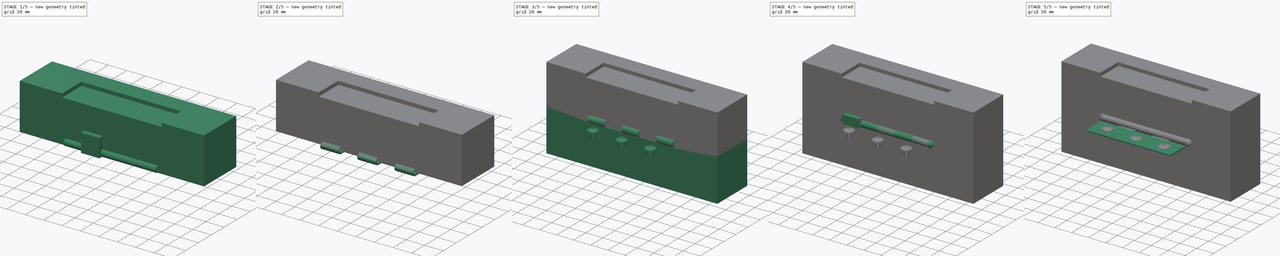
[diagram: build sequence overview — one tinted view per stage of 5, left to right]
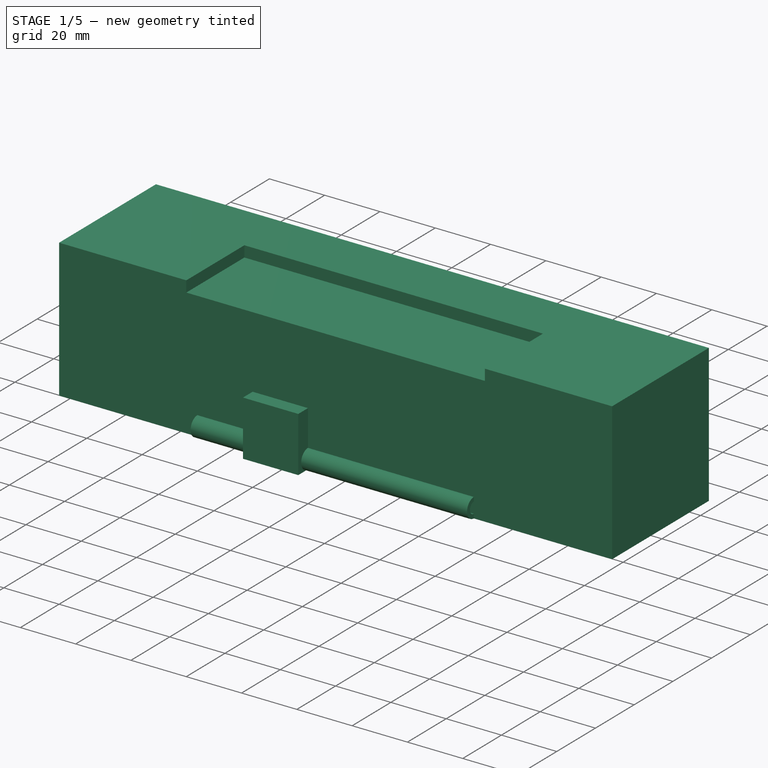
[diagram: stage 1 of 5 — iso view after this stage's code; geometry added in this stage tinted green]
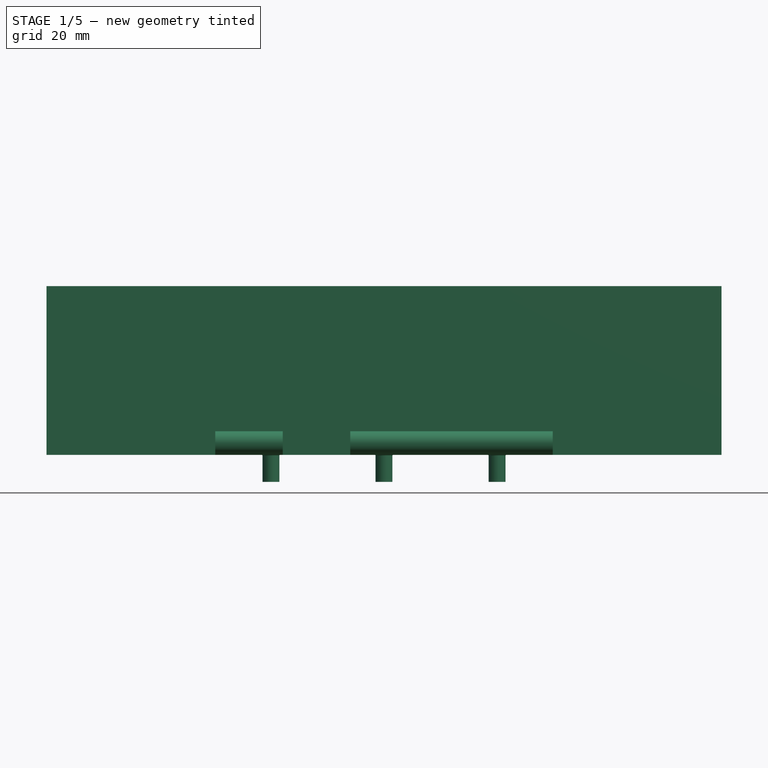
[diagram: stage 1 of 5 — front view after this stage's code; geometry added in this stage tinted green]
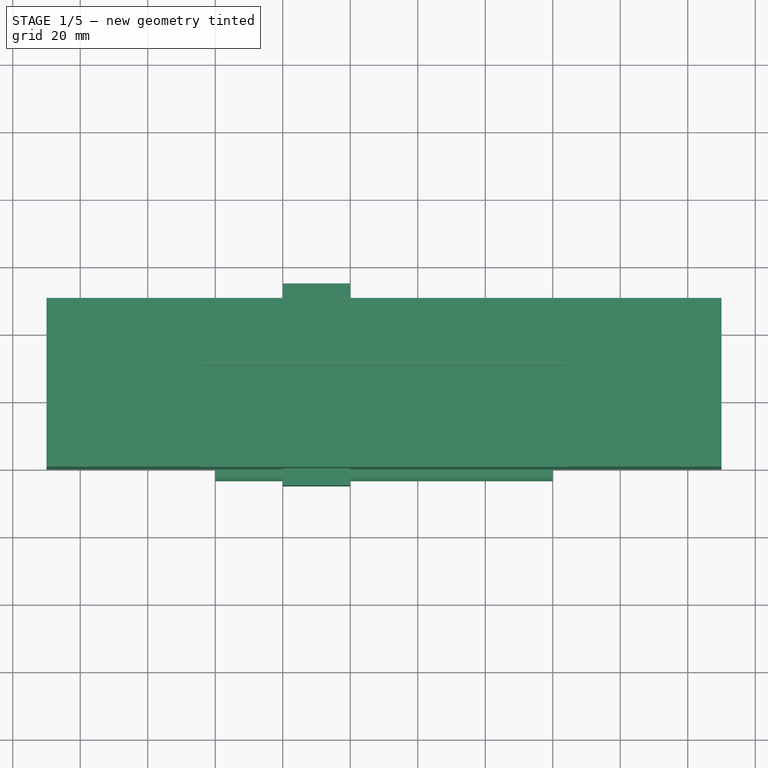
[diagram: stage 1 of 5 — top view after this stage's code; geometry added in this stage tinted green]
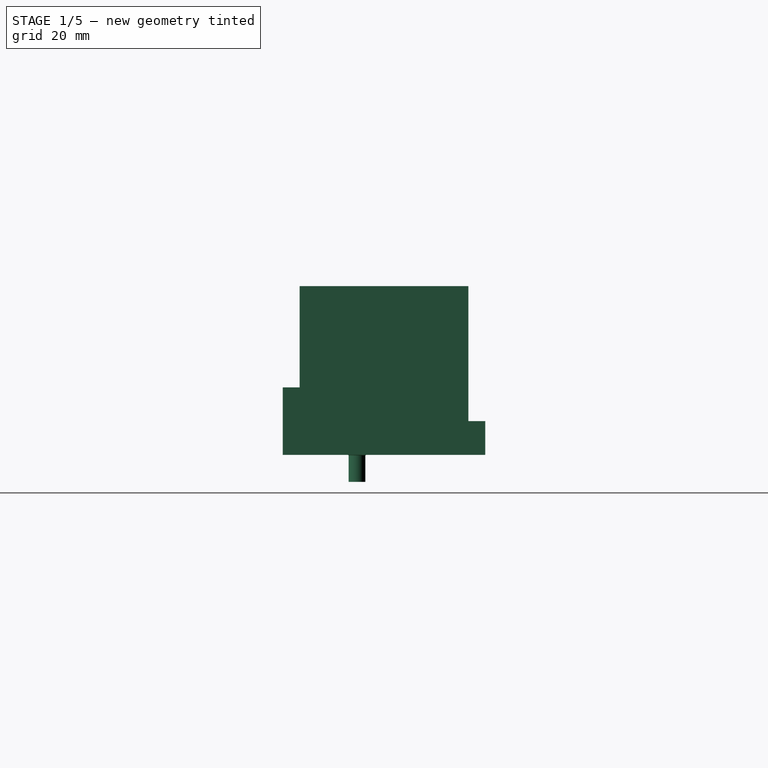
[diagram: stage 1 of 5 — right view after this stage's code; geometry added in this stage tinted green]
FCSTD DOCUMENT  (FreeCAD 0.19R24291 (Git))
Label: proj
License: All rights reserved
LicenseURL: http://en.wikipedia.org/wiki/All_rights_reserved
objects: Sketcher::SketchObject×10, Part::Box×7, Part::Cut×7, Part::FeaturePython×6, PartDesign::Pad×5, PartDesign::Pocket×5, PartDesign::Body×5, PartDesign::FeaturePython×3, PartDesign::Chamfer×3, Part::Compound×3, Part::Sphere×2, Part::MultiFuse×2, Part::Cylinder×1
note: 72 computed .brp shape members not serialized (recipe doc carries the construction recipe); baked Part::Feature solids carry a one-line shape summary decoded from their .brp

FEATURE [PartDesign::Body] Body001
  Group = -> [Sketch002,Pad001,Bend001,Sketch003,Pocket001,Chamfer001]
  Origin = -> Origin001
  Tip = -> Chamfer001
FEATURE [Sketcher::SketchObject] Sketch004
  FullyConstrained = true
  MapMode = 5
  Support = -> [XY_Plane002]
  sketch-geometry (4):
    g0: LineSegment StartX=0 StartY=0 StartZ=0 EndX=100 EndY=0 EndZ=0
    g1: LineSegment StartX=100 StartY=0 StartZ=0 EndX=100 EndY=30 EndZ=0
    g2: LineSegment StartX=100 StartY=30 StartZ=0 EndX=0 EndY=30 EndZ=0
    g3: LineSegment StartX=0 StartY=30 StartZ=0 EndX=0 EndY=0 EndZ=0
  constraints (11):
    c: Coincident(g0,g1)
    c: Coincident(g1,g2)
    c: Coincident(g2,g3)
    c: Coincident(g3,g0)
    c: Horizontal(g0)
    c: Horizontal(g2)
    c: Vertical(g1)
    c: Vertical(g3)
    c: Coincident(g0,g-1)
    c: DistanceY(g1) = 30
    c: DistanceX(g1) = 100
FEATURE [PartDesign::Pad] Pad002
  Direction = (1,1,1)
  Length = 1.5
  Length2 = 100
  Profile = -> Sketch004
  Type = 0
FEATURE [PartDesign::FeaturePython] Bend002  # WARN: FeaturePython — macro-defined, semantics opaque (R4)
  AutoMiter = true
  BaseFeature = -> Pad002
  BendType = 0
  LengthList = [1e-05]
  ReliefFactor = 0.7
  UseReliefFactor = false
  angle = 300
  baseObject = -> Pad002 [Face1]
  bendAList = [300]
  extend1 = 0
  extend2 = 0
  gap1 = 0
  gap2 = 0
  invert = false
  kfactor = 0.5
  length = 1e-05
  maxExtendDist = 5
  minGap = 0.1
  minReliefGap = 1
  miterangle1 = 0
  miterangle2 = 0
  offset = 0
  radius = 2
  reliefType = 0
  reliefd = 1
  reliefw = 0.8
  sketchflip = false
  sketchinvert = false
  unfold = false
FEATURE [Part::Box] Box001  label="Cube001"
  AttacherType = Attacher::AttachEngine3D
  Height = 10
  Length = 20
  Placement = pos=(20,45,0) rot=(0,0,1;0rad)
  Width = 10
FEATURE [Part::Box] Box005  label="Cube005"
  AttacherType = Attacher::AttachEngine3D
  Height = 20
  Length = 20
  Placement = pos=(20,-5,0) rot=(0,0,1;0rad)
  Width = 10
FEATURE [Sketcher::SketchObject] Sketch006
  FullyConstrained = true
  MapMode = 5
  Support = -> [XY_Plane003]
  sketch-geometry (4):
    g0: LineSegment StartX=-50 StartY=50 StartZ=0 EndX=150 EndY=50 EndZ=0
    g1: LineSegment StartX=150 StartY=50 StartZ=0 EndX=150 EndY=0 EndZ=0
    g2: LineSegment StartX=150 StartY=0 StartZ=0 EndX=-50 EndY=0 EndZ=0
    g3: LineSegment StartX=-50 StartY=0 StartZ=0 EndX=-50 EndY=50 EndZ=0
  constraints (12):
    c: Coincident(g0,g1)
    c: Coincident(g1,g2)
    c: Coincident(g2,g3)
    c: Coincident(g3,g0)
    c: Horizontal(g0)
    c: Horizontal(g2)
    c: Vertical(g1)
    c: Vertical(g3)
    c: Distance(g0) = 200
    c: Distance(g1) = 50
    c: DistanceX(g0) = 150
    c: DistanceY(g0) = 50
FEATURE [PartDesign::Pad] Pad003
  Direction = (1,1,1)
  Length = 50
  Length2 = 100
  Profile = -> Sketch006
  Type = 0
FEATURE [Sketcher::SketchObject] Sketch007
  FullyConstrained = false
  MapMode = 5
  Placement = pos=(0,0,50) rot=(0,0,1;0rad)
  Support = -> [Pad003]
  sketch-geometry (4):
    g0: LineSegment StartX=-4 StartY=0 StartZ=0 EndX=104 EndY=0 EndZ=0
    g1: LineSegment StartX=104 StartY=0 StartZ=0 EndX=104 EndY=30 EndZ=0
    g2: LineSegment StartX=104 StartY=30 StartZ=0 EndX=-4 EndY=30 EndZ=0
    g3: LineSegment StartX=-4 StartY=30 StartZ=0 EndX=-4 EndY=0 EndZ=0
  constraints (11):
    c: Coincident(g0,g1)
    c: Coincident(g1,g2)
    c: Coincident(g2,g3)
    c: Coincident(g3,g0)
    c: Horizontal(g0)
    c: Horizontal(g2)
    c: Vertical(g1)
    c: Vertical(g3)
    c: Distance(g1) = 30
    c: Distance(g2) = 108
    c: DistanceX(g1) = 104
FEATURE [PartDesign::Pocket] Pocket003
  BaseFeature = -> Pad003
  Length = 4
  Length2 = 100
  Profile = -> Sketch007
  Type = 0
FEATURE [PartDesign::Body] Body004
  Group = -> [Sketch009,Pad004,Sketch008,Pocket004]
  Origin = -> Origin004
  Placement = pos=(100,0,-46.5) rot=(0,0,1;3.14159rad)
  Tip = -> Pocket004
FEATURE [Part::FeaturePython] Screw  label="M5x8-Screw"  # Fasteners workbench fastener (typed FeaturePython)
  Placement = pos=(16.5,17,0) rot=(0,0,1;0rad)
  diameter = 4
  invert = false
  length = 1
  lengthCustom = 8
  matchOuter = false
  offset = 0
  thread = false
  type = 15
FEATURE [Part::FeaturePython] Screw001  label="M5x8-Screw013"  # Fasteners workbench fastener (typed FeaturePython)
  Placement = pos=(50,17,0) rot=(0,0,1;0rad)
  diameter = 4
  invert = false
  length = 1
  lengthCustom = 8
  matchOuter = false
  offset = 0
  thread = false
  type = 15
FEATURE [Part::FeaturePython] Screw002  label="M5x8-Screw014"  # Fasteners workbench fastener (typed FeaturePython)
  Placement = pos=(83.5,17,0) rot=(0,0,1;0rad)
  diameter = 4
  invert = false
  length = 1
  lengthCustom = 8
  matchOuter = false
  offset = 0
  thread = false
  type = 15
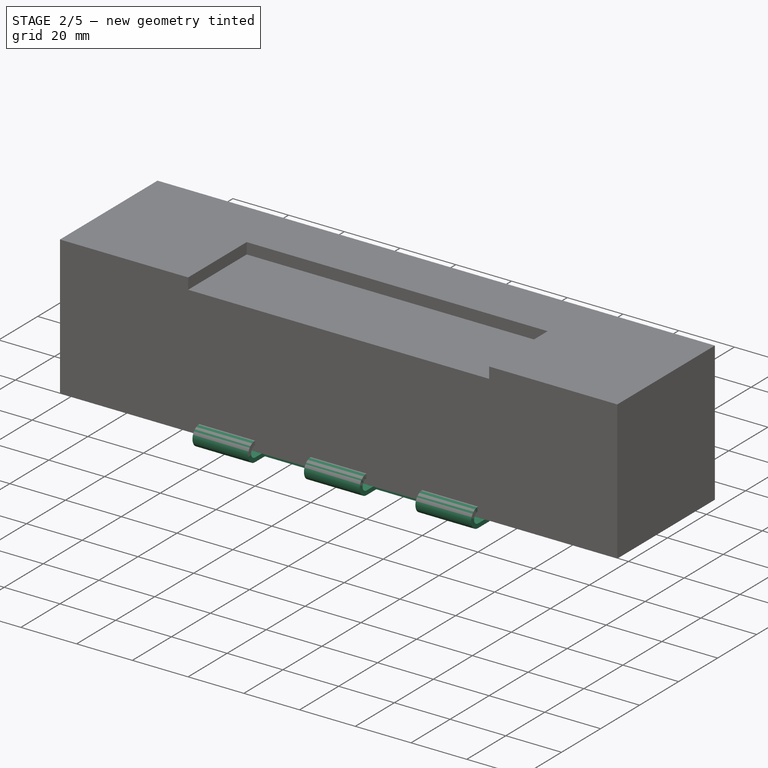
[diagram: stage 2 of 5 — iso view after this stage's code; geometry added in this stage tinted green]
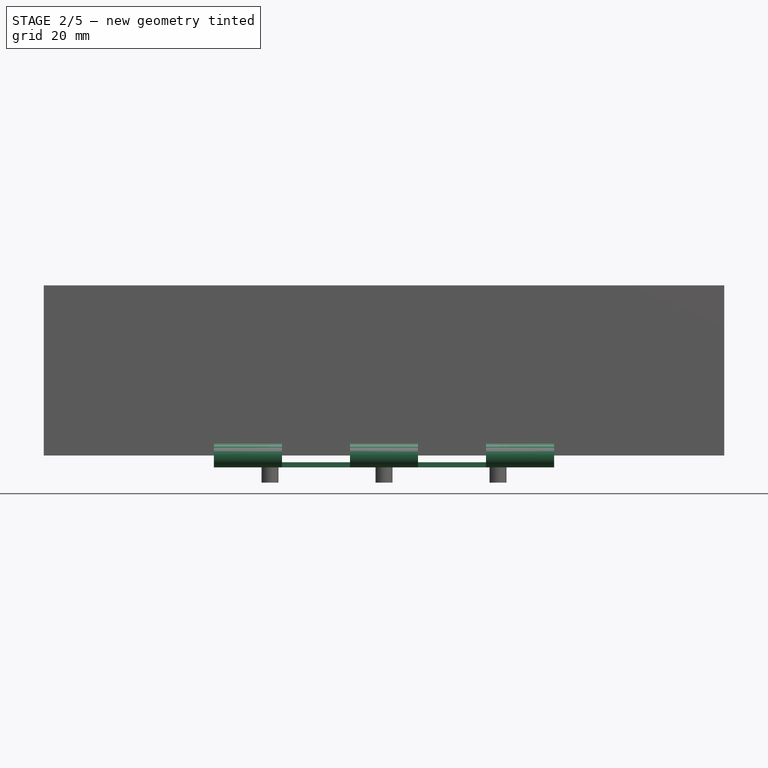
[diagram: stage 2 of 5 — front view after this stage's code; geometry added in this stage tinted green]
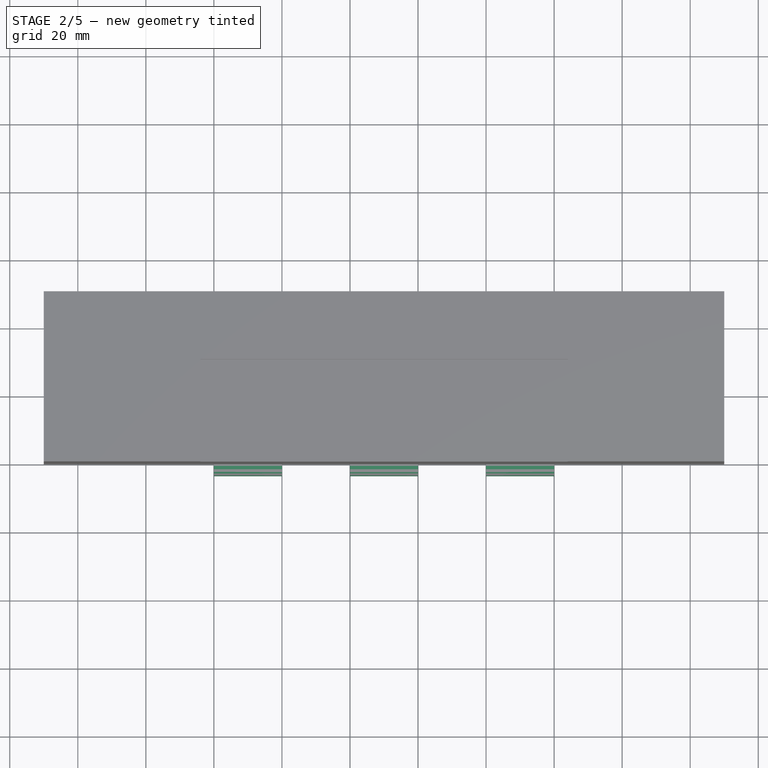
[diagram: stage 2 of 5 — top view after this stage's code; geometry added in this stage tinted green]
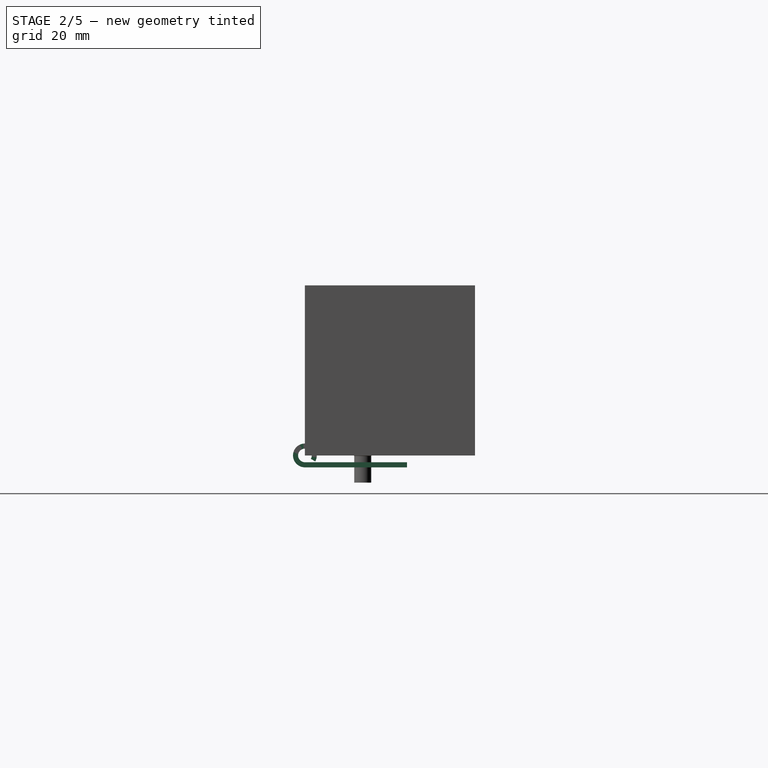
[diagram: stage 2 of 5 — right view after this stage's code; geometry added in this stage tinted green]
FEATURE [Sketcher::SketchObject] Sketch005
  FullyConstrained = true
  MapMode = 5
  Placement = pos=(0,0,1.5) rot=(0,0,1;0rad)
  Support = -> [Bend002]
  sketch-geometry (3):
    g0: Circle CenterX=16.65 CenterY=17 CenterZ=0 NormalX=0 NormalY=0 NormalZ=1 AngleXU=0 Radius=5
    g1: Circle CenterX=49.95 CenterY=17 CenterZ=0 NormalX=0 NormalY=0 NormalZ=1 AngleXU=0 Radius=5
    g2: Circle CenterX=83.25 CenterY=17 CenterZ=0 NormalX=0 NormalY=0 NormalZ=1 AngleXU=0 Radius=5
  constraints (9):
    c: DistanceY(g0) = 17
    c: DistanceY(g1) = 17
    c: DistanceY(g2) = 17
    c: Radius(g1) = 5
    c: Radius(g2) = 5
    c: Radius(g0) = 5
    c: DistanceX(g0) = 16.65
    c: DistanceX(g1) = 49.95
    c: DistanceX(g2) = 83.25
FEATURE [PartDesign::Pocket] Pocket002
  BaseFeature = -> Bend002
  Length = 5
  Length2 = 100
  Profile = -> Sketch005
  Type = 0
FEATURE [PartDesign::Chamfer] Chamfer002
  Angle = 45
  Base = -> Pocket002 [Edge32,Edge33,Edge31]
  BaseFeature = -> Pocket002
  ChamferType = 0
  FlipDirection = false
  Size = 1
  Size2 = 1
  SupportTransform = false
FEATURE [Part::Box] Box003  label="Cube003"
  AttacherType = Attacher::AttachEngine3D
  Height = 10
  Length = 20
  Placement = pos=(60,45,0) rot=(0,0,1;0rad)
  Width = 10
FEATURE [Part::Cut] Cut003
  Base = -> Body002
  Tool = -> Box001
FEATURE [Part::Cut] Cut004
  Base = -> Cut003
  Placement = pos=(0,-50,-3.5) rot=(0,0,1;0rad)
  Tool = -> Box003
FEATURE [Part::Compound] Compound
  Links = -> [Cut004]
FEATURE [Part::Box] Box006  label="Cube006"
  AttacherType = Attacher::AttachEngine3D
  Height = 20
  Length = 20
  Placement = pos=(60,-5,0) rot=(0,0,1;0rad)
  Width = 10
FEATURE [Part::Cut] Cut005
  Base = -> Compound
  Tool = -> Box005
FEATURE [Part::Cut] Cut006
  Base = -> Cut005
  Placement = pos=(0,0,-3.5) rot=(1,0,0;0rad)
  Tool = -> Box006
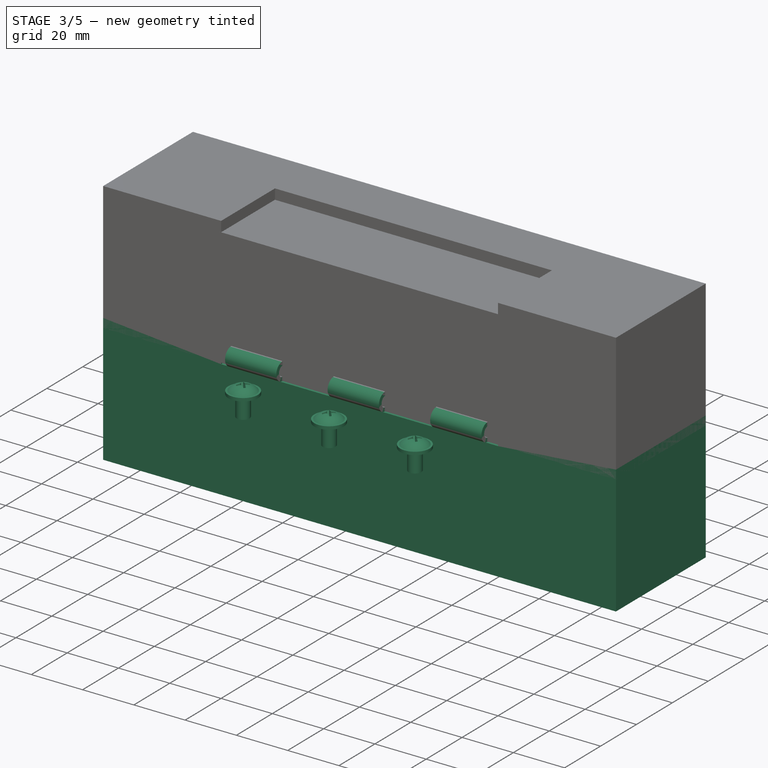
[diagram: stage 3 of 5 — iso view after this stage's code; geometry added in this stage tinted green]
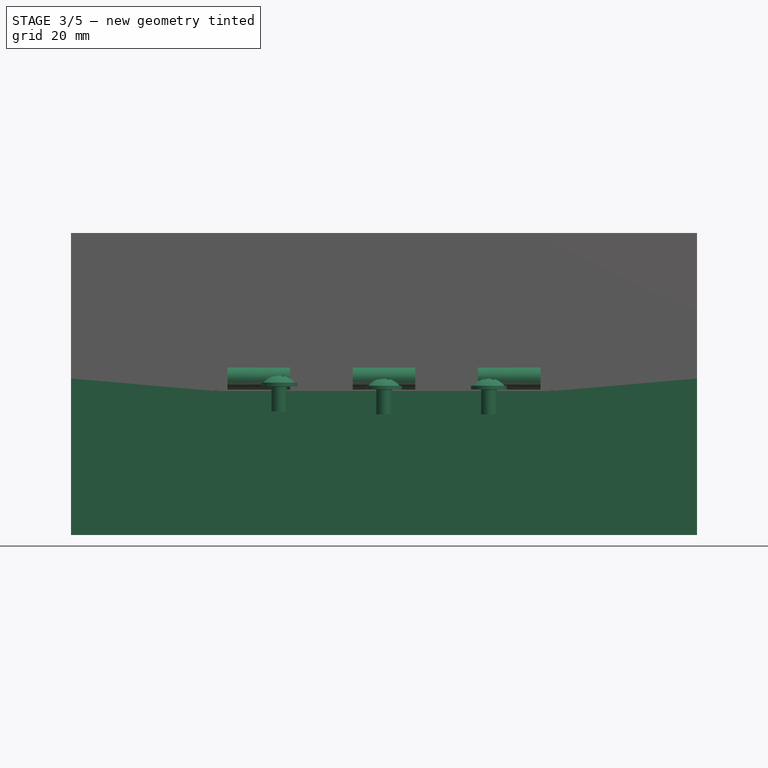
[diagram: stage 3 of 5 — front view after this stage's code; geometry added in this stage tinted green]
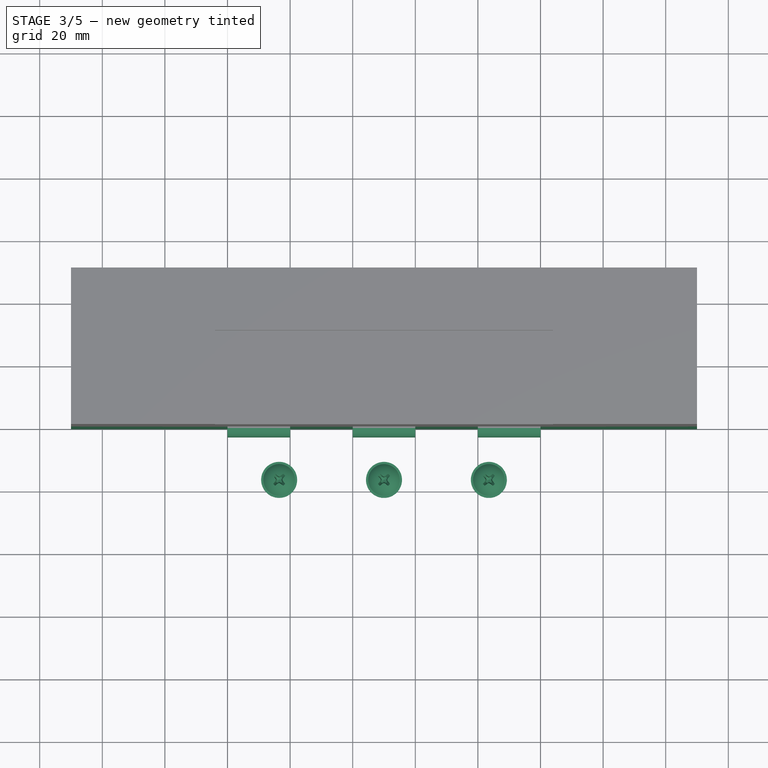
[diagram: stage 3 of 5 — top view after this stage's code; geometry added in this stage tinted green]
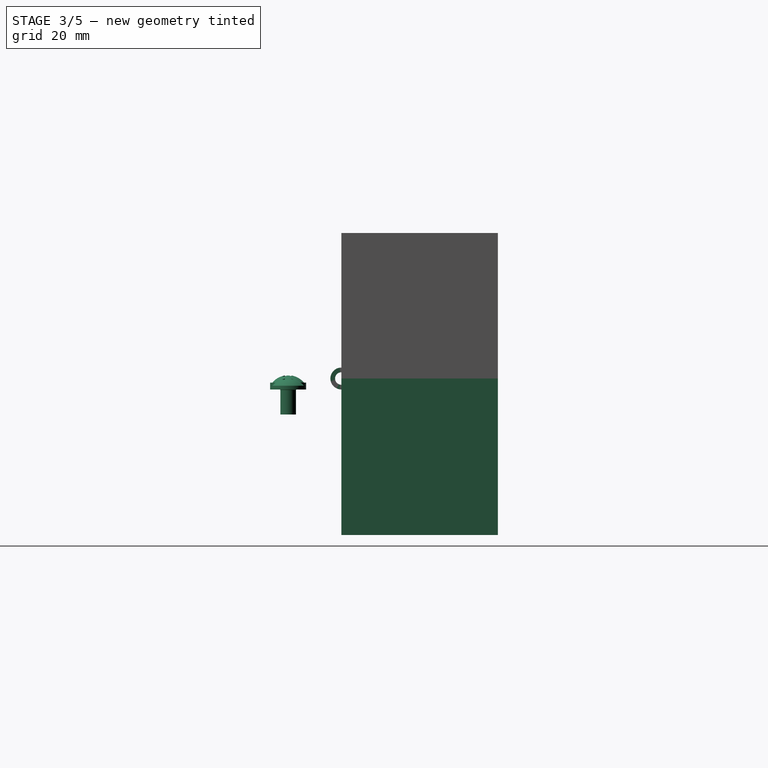
[diagram: stage 3 of 5 — right view after this stage's code; geometry added in this stage tinted green]
FEATURE [Part::Compound] Compound001
  Links = -> [Cut006]
  Placement = pos=(0,0,3.5) rot=(1,0,0;0rad)
FEATURE [PartDesign::Body] Body003
  Group = -> [Sketch006,Pad003,Sketch007,Pocket003]
  Origin = -> Origin003
  Placement = pos=(0,0,-46.5) rot=(1,0,0;0rad)
  Tip = -> Pocket003
FEATURE [Sketcher::SketchObject] Sketch009
  FullyConstrained = true
  MapMode = 5
  Support = -> [XY_Plane004]
  sketch-geometry (4):
    g0: LineSegment StartX=-50 StartY=50 StartZ=0 EndX=150 EndY=50 EndZ=0
    g1: LineSegment StartX=150 StartY=50 StartZ=0 EndX=150 EndY=0 EndZ=0
    g2: LineSegment StartX=150 StartY=0 StartZ=0 EndX=-50 EndY=0 EndZ=0
    g3: LineSegment StartX=-50 StartY=0 StartZ=0 EndX=-50 EndY=50 EndZ=0
  constraints (12):
    c: Coincident(g0,g1)
    c: Coincident(g1,g2)
    c: Coincident(g2,g3)
    c: Coincident(g3,g0)
    c: Horizontal(g0)
    c: Horizontal(g2)
    c: Vertical(g1)
    c: Vertical(g3)
    c: Distance(g0) = 200
    c: Distance(g1) = 50
    c: DistanceX(g0) = 150
    c: DistanceY(g0) = 50
FEATURE [PartDesign::Pad] Pad004
  Direction = (1,1,1)
  Length = 50
  Length2 = 100
  Profile = -> Sketch009
  Type = 0
FEATURE [Sketcher::SketchObject] Sketch008
  FullyConstrained = false
  MapMode = 5
  Placement = pos=(0,0,50) rot=(0,0,1;0rad)
  Support = -> [Pad004]
  sketch-geometry (4):
    g0: LineSegment StartX=-4 StartY=0 StartZ=0 EndX=104 EndY=0 EndZ=0
    g1: LineSegment StartX=104 StartY=0 StartZ=0 EndX=104 EndY=30 EndZ=0
    g2: LineSegment StartX=104 StartY=30 StartZ=0 EndX=-4 EndY=30 EndZ=0
    g3: LineSegment StartX=-4 StartY=30 StartZ=0 EndX=-4 EndY=0 EndZ=0
  constraints (11):
    c: Coincident(g0,g1)
    c: Coincident(g1,g2)
    c: Coincident(g2,g3)
    c: Coincident(g3,g0)
    c: Horizontal(g0)
    c: Horizontal(g2)
    c: Vertical(g1)
    c: Vertical(g3)
    c: Distance(g1) = 30
    c: Distance(g2) = 108
    c: DistanceX(g1) = 104
FEATURE [PartDesign::Pocket] Pocket004
  BaseFeature = -> Pad004
  Length = 4
  Length2 = 100
  Profile = -> Sketch008
  Type = 0
FEATURE [Part::FeaturePython] Screw003  label="M5x8-Screw015"  # Fasteners workbench fastener (typed FeaturePython)
  Placement = pos=(16.5,-17,1) rot=(0,0,1;0rad)
  diameter = 4
  invert = false
  length = 1
  lengthCustom = 8
  matchOuter = false
  offset = 0
  thread = false
  type = 15
FEATURE [Part::FeaturePython] Screw004  label="M5x8-Screw016"  # Fasteners workbench fastener (typed FeaturePython)
  Placement = pos=(50,-17,0) rot=(0,0,1;0rad)
  diameter = 4
  invert = false
  length = 1
  lengthCustom = 8
  matchOuter = false
  offset = 0
  thread = false
  type = 15
FEATURE [Part::FeaturePython] Screw005  label="M5x8-Screw017"  # Fasteners workbench fastener (typed FeaturePython)
  Placement = pos=(83.5,-17,0) rot=(0,0,1;0rad)
  diameter = 4
  invert = false
  length = 1
  lengthCustom = 8
  matchOuter = false
  offset = 0
  thread = false
  type = 15
FEATURE [Part::MultiFuse] Fusion001
  Placement = pos=(0,0,-3.5) rot=(1,0,0;0rad)
  Shapes = -> [Compound001,Body003,Screw,Screw001,Screw002]
FEATURE [Part::Compound] Compound002
  Links = -> [Fusion001]
  Placement = pos=(0,0,3.5) rot=(1,0,0;0rad)
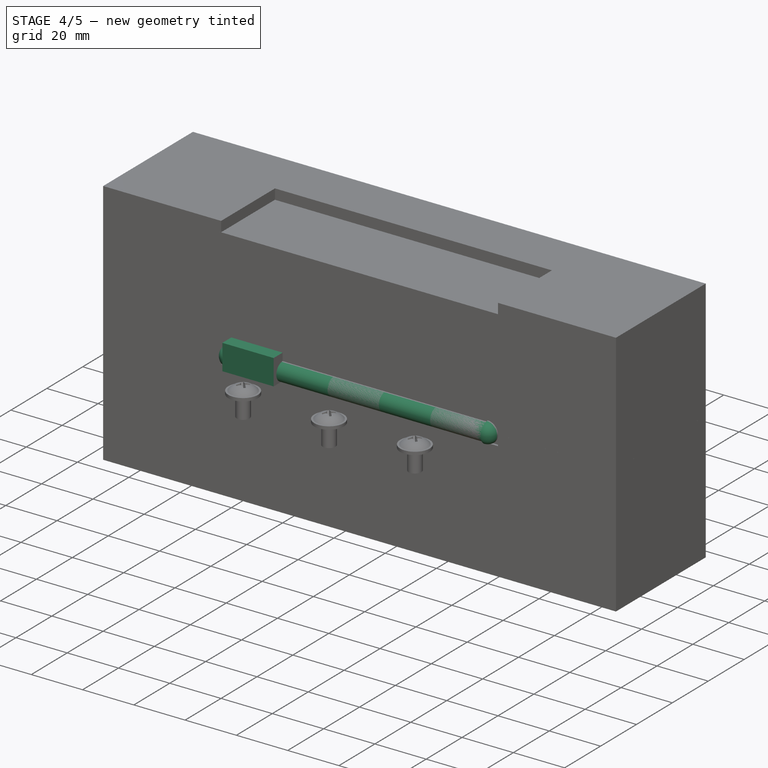
[diagram: stage 4 of 5 — iso view after this stage's code; geometry added in this stage tinted green]
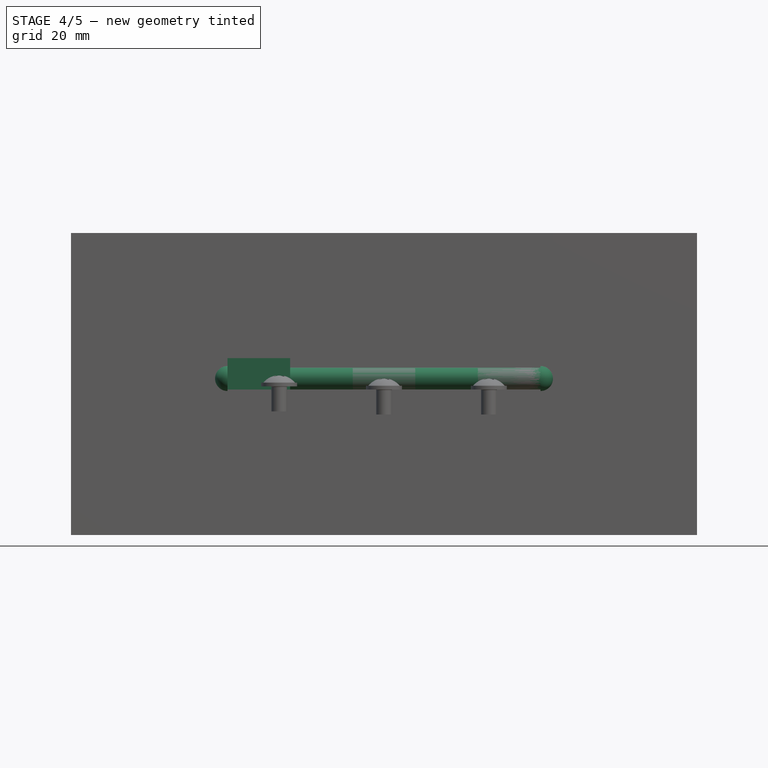
[diagram: stage 4 of 5 — front view after this stage's code; geometry added in this stage tinted green]
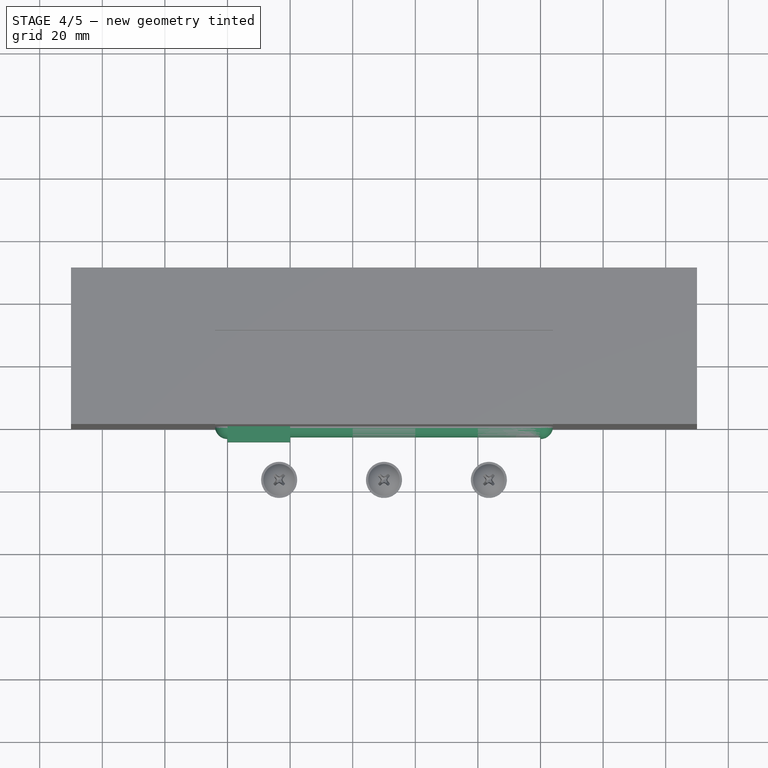
[diagram: stage 4 of 5 — top view after this stage's code; geometry added in this stage tinted green]
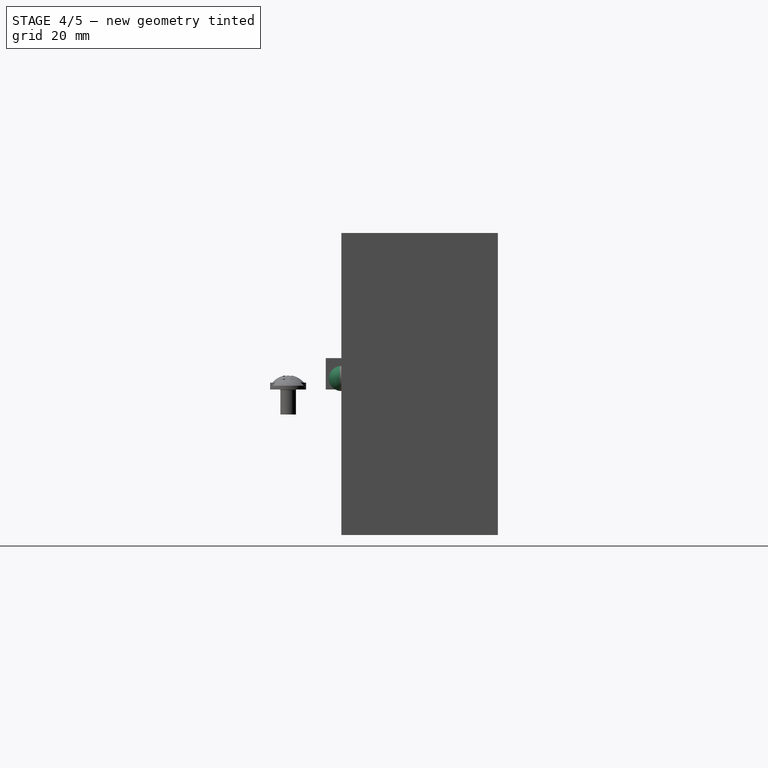
[diagram: stage 4 of 5 — right view after this stage's code; geometry added in this stage tinted green]
FEATURE [PartDesign::Body] Body
  Group = -> [Sketch,Pad,Bend,Sketch001,Pocket,Chamfer]
  Origin = -> Origin
  Tip = -> Chamfer
FEATURE [Sketcher::SketchObject] Sketch002
  FullyConstrained = true
  MapMode = 5
  Support = -> [XY_Plane001]
  sketch-geometry (4):
    g0: LineSegment StartX=0 StartY=0 StartZ=0 EndX=100 EndY=0 EndZ=0
    g1: LineSegment StartX=100 StartY=0 StartZ=0 EndX=100 EndY=30 EndZ=0
    g2: LineSegment StartX=100 StartY=30 StartZ=0 EndX=0 EndY=30 EndZ=0
    g3: LineSegment StartX=0 StartY=30 StartZ=0 EndX=0 EndY=0 EndZ=0
  constraints (11):
    c: Coincident(g0,g1)
    c: Coincident(g1,g2)
    c: Coincident(g2,g3)
    c: Coincident(g3,g0)
    c: Horizontal(g0)
    c: Horizontal(g2)
    c: Vertical(g1)
    c: Vertical(g3)
    c: Coincident(g0,g-1)
    c: DistanceY(g1) = 30
    c: DistanceX(g1) = 100
FEATURE [PartDesign::Pad] Pad001
  Direction = (1,1,1)
  Length = 1.5
  Length2 = 100
  Profile = -> Sketch002
  Type = 0
FEATURE [PartDesign::FeaturePython] Bend001  # WARN: FeaturePython — macro-defined, semantics opaque (R4)
  AutoMiter = true
  BaseFeature = -> Pad001
  BendType = 0
  LengthList = [1e-05]
  ReliefFactor = 0.7
  UseReliefFactor = false
  angle = 300
  baseObject = -> Pad001 [Face1]
  bendAList = [300]
  extend1 = 0
  extend2 = 0
  gap1 = 0
  gap2 = 0
  invert = false
  kfactor = 0.5
  length = 1e-05
  maxExtendDist = 5
  minGap = 0.1
  minReliefGap = 1
  miterangle1 = 0
  miterangle2 = 0
  offset = 0
  radius = 2
  reliefType = 0
  reliefd = 1
  reliefw = 0.8
  sketchflip = false
  sketchinvert = false
  unfold = false
FEATURE [Sketcher::SketchObject] Sketch003
  FullyConstrained = true
  MapMode = 5
  Placement = pos=(0,0,1.5) rot=(0,0,1;0rad)
  Support = -> [Bend001]
  sketch-geometry (3):
    g0: Circle CenterX=16.65 CenterY=17 CenterZ=0 NormalX=0 NormalY=0 NormalZ=1 AngleXU=0 Radius=5
    g1: Circle CenterX=49.95 CenterY=17 CenterZ=0 NormalX=0 NormalY=0 NormalZ=1 AngleXU=0 Radius=5
    g2: Circle CenterX=83.25 CenterY=17 CenterZ=0 NormalX=0 NormalY=0 NormalZ=1 AngleXU=0 Radius=5
  constraints (9):
    c: DistanceY(g0) = 17
    c: DistanceY(g1) = 17
    c: DistanceY(g2) = 17
    c: Radius(g1) = 5
    c: Radius(g2) = 5
    c: Radius(g0) = 5
    c: DistanceX(g0) = 16.65
    c: DistanceX(g1) = 49.95
    c: DistanceX(g2) = 83.25
FEATURE [PartDesign::Pocket] Pocket001
  BaseFeature = -> Bend001
  Length = 5
  Length2 = 100
  Profile = -> Sketch003
  Type = 0
FEATURE [PartDesign::Chamfer] Chamfer001
  Angle = 45
  Base = -> Pocket001 [Edge32,Edge33,Edge31]
  BaseFeature = -> Pocket001
  ChamferType = 0
  FlipDirection = false
  Size = 1
  Size2 = 1
  SupportTransform = false
FEATURE [PartDesign::Body] Body002
  Group = -> [Sketch004,Pad002,Bend002,Sketch005,Pocket002,Chamfer002]
  Origin = -> Origin002
  Placement = pos=(0,50,3.5) rot=(1,0,0;0rad)
  Tip = -> Chamfer002
FEATURE [Part::Box] Box  label="Cube"
  AttacherType = Attacher::AttachEngine3D
  Height = 10
  Length = 20
  Placement = pos=(0,-5,0) rot=(0,0,1;0rad)
  Width = 10
FEATURE [Part::Cylinder] Cylinder
  Angle = 360
  AttacherType = Attacher::AttachEngine3D
  Height = 102
  Placement = pos=(-1,50,3.4) rot=(0.707107,0,0.707107;3.14159rad)
  Radius = 2
FEATURE [Part::Sphere] Sphere
  Angle1 = -90
  Angle2 = 90
  Angle3 = 180
  AttacherType = Attacher::AttachEngine3D
  Placement = pos=(0,50,3.5) rot=(0,0,1;1.5708rad)
  Radius = 4
FEATURE [Part::Sphere] Sphere001
  Angle1 = -90
  Angle2 = 90
  Angle3 = 180
  AttacherType = Attacher::AttachEngine3D
  Placement = pos=(100,50,3.5) rot=(0,0,-1;1.5708rad)
  Radius = 4
FEATURE [Part::MultiFuse] Fusion
  Placement = pos=(0,-50,0) rot=(0,0,1;0rad)
  Shapes = -> [Sphere001,Cylinder,Sphere]
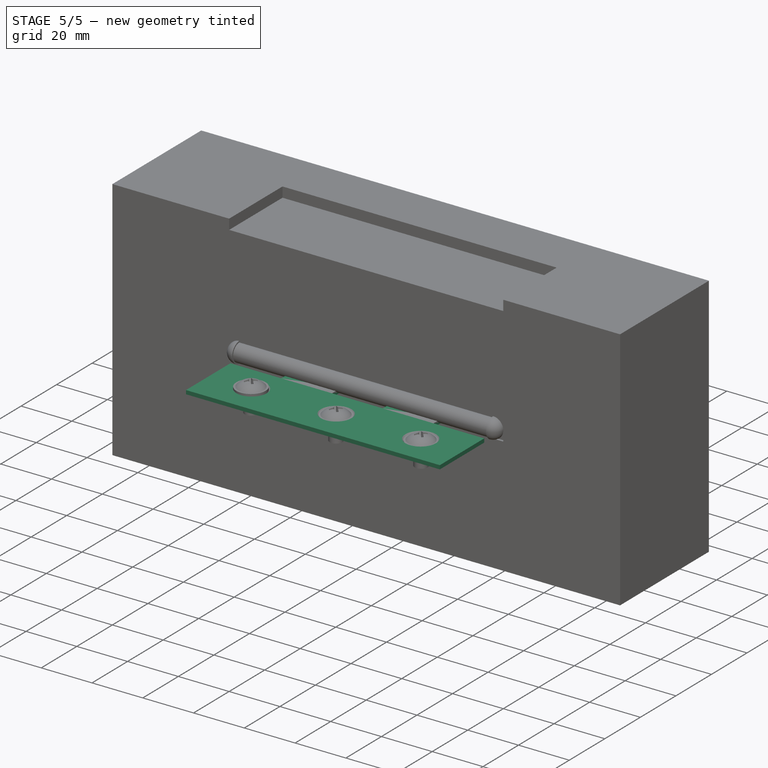
[diagram: stage 5 of 5 — iso view after this stage's code; geometry added in this stage tinted green]
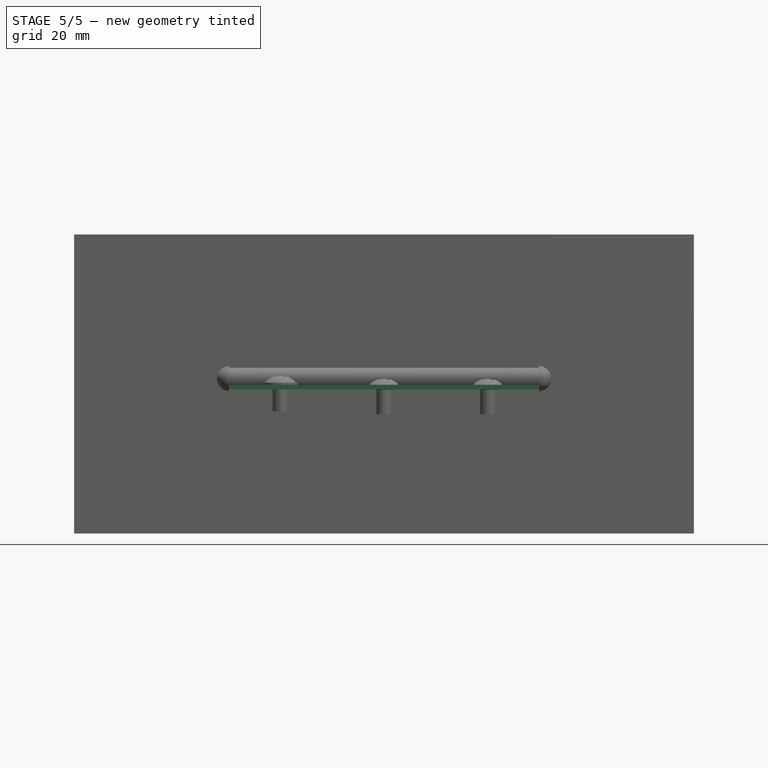
[diagram: stage 5 of 5 — front view after this stage's code; geometry added in this stage tinted green]
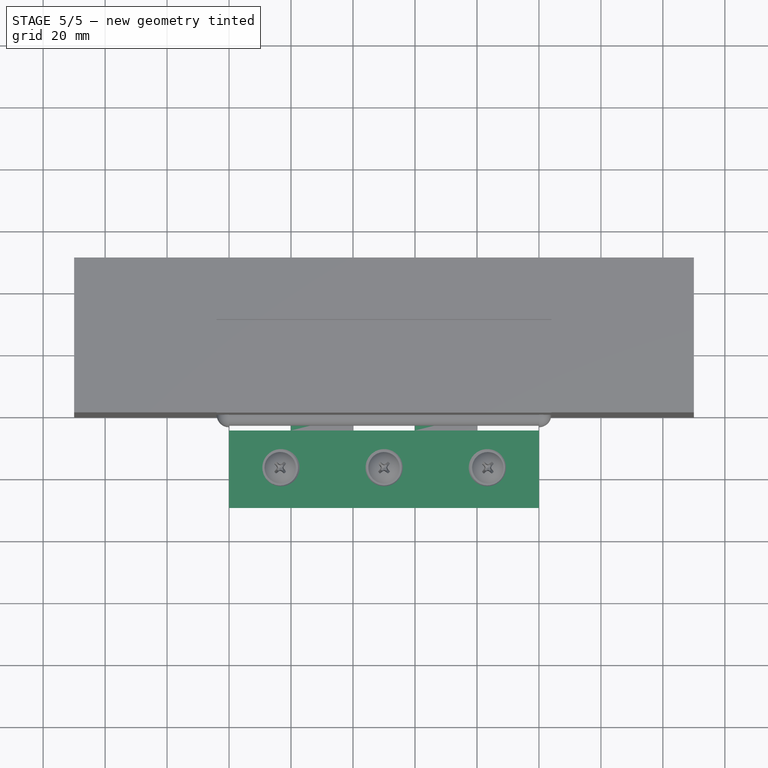
[diagram: stage 5 of 5 — top view after this stage's code; geometry added in this stage tinted green]
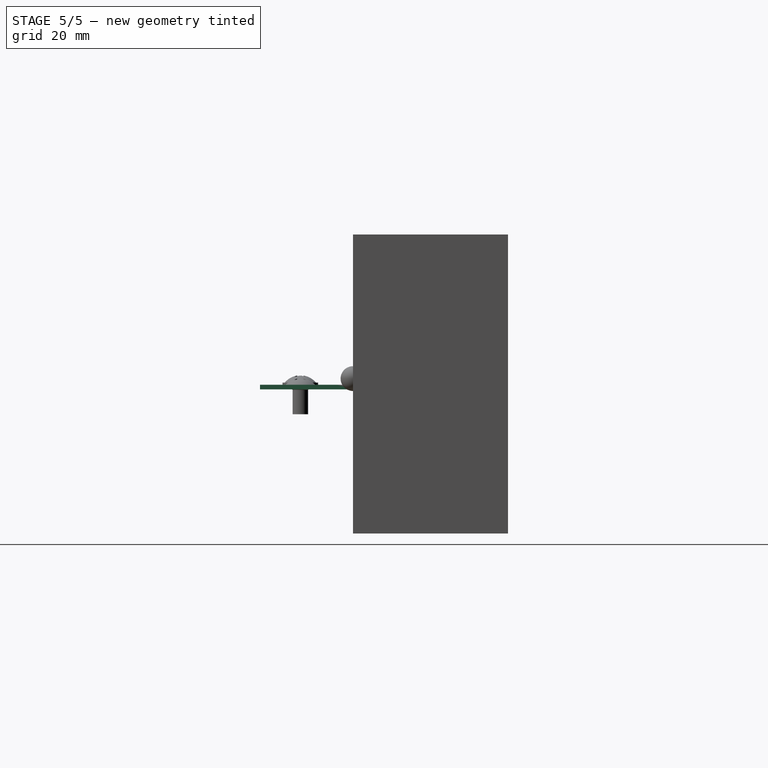
[diagram: stage 5 of 5 — right view after this stage's code; geometry added in this stage tinted green]
FEATURE [Sketcher::SketchObject] Sketch
  FullyConstrained = true
  MapMode = 5
  Support = -> [XY_Plane]
  sketch-geometry (4):
    g0: LineSegment StartX=0 StartY=0 StartZ=0 EndX=100 EndY=0 EndZ=0
    g1: LineSegment StartX=100 StartY=0 StartZ=0 EndX=100 EndY=30 EndZ=0
    g2: LineSegment StartX=100 StartY=30 StartZ=0 EndX=0 EndY=30 EndZ=0
    g3: LineSegment StartX=0 StartY=30 StartZ=0 EndX=0 EndY=0 EndZ=0
  constraints (11):
    c: Coincident(g0,g1)
    c: Coincident(g1,g2)
    c: Coincident(g2,g3)
    c: Coincident(g3,g0)
    c: Horizontal(g0)
    c: Horizontal(g2)
    c: Vertical(g1)
    c: Vertical(g3)
    c: Coincident(g0,g-1)
    c: DistanceY(g1) = 30
    c: DistanceX(g1) = 100
FEATURE [PartDesign::Pad] Pad
  Direction = (1,1,1)
  Length = 1.5
  Length2 = 100
  Profile = -> Sketch
  Type = 0
FEATURE [PartDesign::FeaturePython] Bend  # WARN: FeaturePython — macro-defined, semantics opaque (R4)
  AutoMiter = true
  BaseFeature = -> Pad
  BendType = 0
  LengthList = [1e-05]
  ReliefFactor = 0.7
  UseReliefFactor = false
  angle = 300
  baseObject = -> Pad [Face1]
  bendAList = [300]
  extend1 = 0
  extend2 = 0
  gap1 = 0
  gap2 = 0
  invert = false
  kfactor = 0.5
  length = 1e-05
  maxExtendDist = 5
  minGap = 0.1
  minReliefGap = 1
  miterangle1 = 0
  miterangle2 = 0
  offset = 0
  radius = 2
  reliefType = 0
  reliefd = 1
  reliefw = 0.8
  sketchflip = false
  sketchinvert = false
  unfold = false
FEATURE [Sketcher::SketchObject] Sketch001
  FullyConstrained = true
  MapMode = 5
  Placement = pos=(0,0,1.5) rot=(0,0,1;0rad)
  Support = -> [Bend]
  sketch-geometry (3):
    g0: Circle CenterX=16.65 CenterY=17 CenterZ=0 NormalX=0 NormalY=0 NormalZ=1 AngleXU=0 Radius=5
    g1: Circle CenterX=49.95 CenterY=17 CenterZ=0 NormalX=0 NormalY=0 NormalZ=1 AngleXU=0 Radius=5
    g2: Circle CenterX=83.25 CenterY=17 CenterZ=0 NormalX=0 NormalY=0 NormalZ=1 AngleXU=0 Radius=5
  constraints (9):
    c: DistanceY(g0) = 17
    c: DistanceY(g1) = 17
    c: DistanceY(g2) = 17
    c: Radius(g1) = 5
    c: Radius(g2) = 5
    c: Radius(g0) = 5
    c: DistanceX(g0) = 16.65
    c: DistanceX(g1) = 49.95
    c: DistanceX(g2) = 83.25
FEATURE [PartDesign::Pocket] Pocket
  BaseFeature = -> Bend
  Length = 5
  Length2 = 100
  Profile = -> Sketch001
  Type = 0
FEATURE [PartDesign::Chamfer] Chamfer
  Angle = 45
  Base = -> Pocket [Edge32,Edge33,Edge31]
  BaseFeature = -> Pocket
  ChamferType = 0
  FlipDirection = false
  Size = 1
  Size2 = 1
  SupportTransform = false
FEATURE [Part::Box] Box002  label="Cube002"
  AttacherType = Attacher::AttachEngine3D
  Height = 10
  Length = 20
  Placement = pos=(40,-5,0) rot=(0,0,1;0rad)
  Width = 10
FEATURE [Part::Box] Box004  label="Cube004"
  AttacherType = Attacher::AttachEngine3D
  Height = 10
  Length = 20
  Placement = pos=(80,-5,0) rot=(0,0,1;0rad)
  Width = 10
FEATURE [Part::Cut] Cut
  Base = -> Body001
  Tool = -> Box
FEATURE [Part::Cut] Cut001
  Base = -> Cut
  Tool = -> Box002
FEATURE [Part::Cut] Cut002
  Base = -> Cut001
  Placement = pos=(100,0,0) rot=(0,0,1;3.14159rad)
  Tool = -> Box004
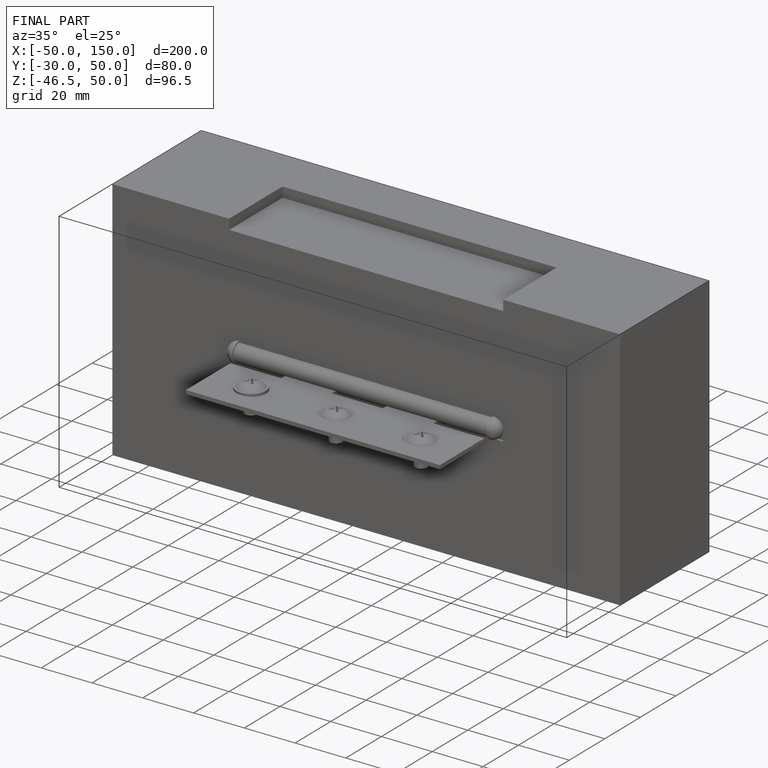
[diagram: finished part — iso view with bounding-box wireframe]
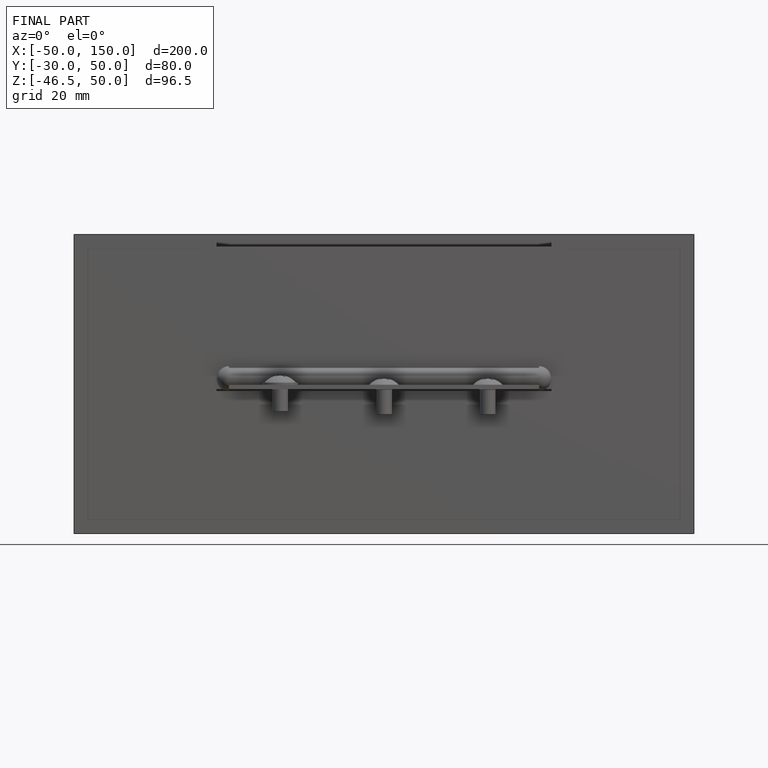
[diagram: finished part — front view with bounding-box wireframe]
